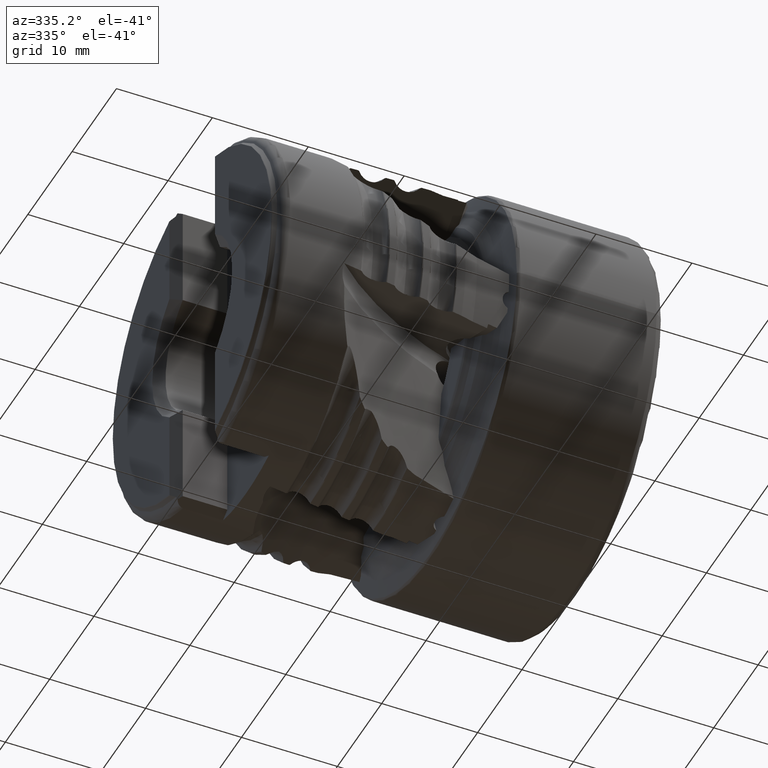
[diagram: clean part render]
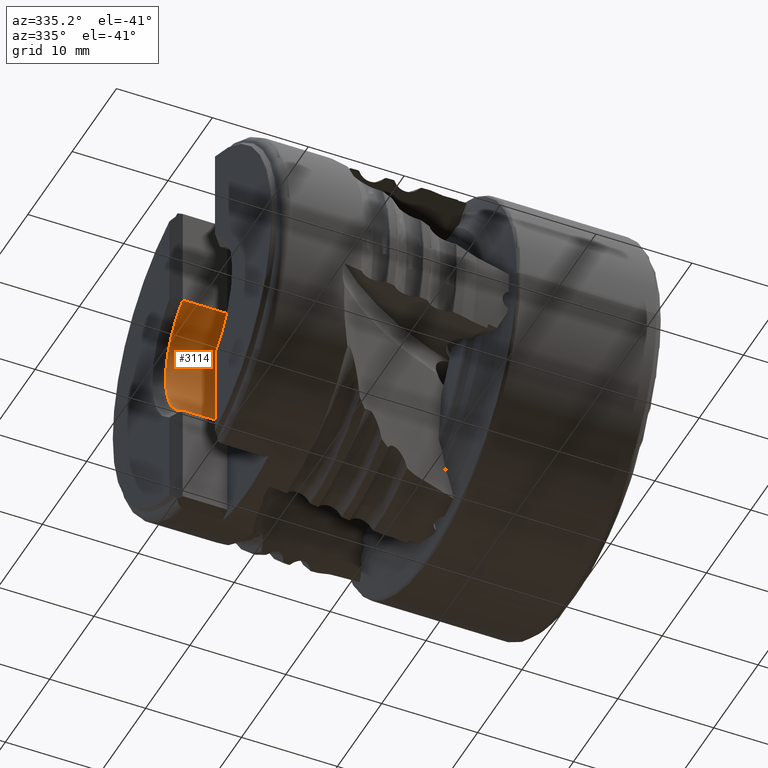
[diagram: same view with one face highlighted and labeled with its STEP entity id]
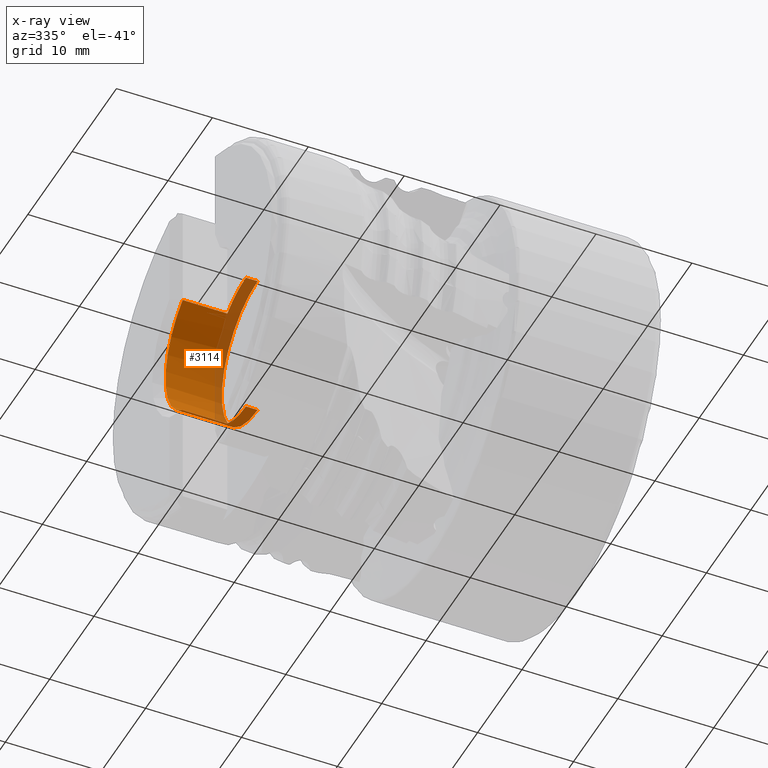
[diagram: x-ray of the same camera — body ghosted, the highlighted face saturated]
A machine part, auxiliary view. The second image highlights one B-rep face of the part: STEP entity #3114.
The next image is the same camera in x-ray: the body ghosted, the highlighted face saturated — about 26% of this face is hidden behind the body in this view.
In plain terms, the highlighted cylindrical surface (partial cylindrical patch) has radius 8.075 mm, axis along (1, -0, -0).
Its self-contained STEP definition (entity closure, byte-faithful):
#302 = DIRECTION ( 'NONE',  ( 0.0000000000000000000, 3.552713678800500929E-15, -1.000000000000000000 ) ) ;
#404 = EDGE_CURVE ( 'NONE', #10085, #5048, #13959, .T. ) ;
#441 = EDGE_LOOP ( 'NONE', ( #4453, #3332, #12303, #14901, #7758, #13588, #6502, #4756 ) ) ;
#627 = VERTEX_POINT ( 'NONE', #8793 ) ;
#1146 = AXIS2_PLACEMENT_3D ( 'NONE', #15166, #12739, #6769 ) ;
#1434 = DIRECTION ( 'NONE',  ( 1.000000000000000000, -0.0000000000000000000, -0.0000000000000000000 ) ) ;
#1790 = LINE ( 'NONE', #14559, #14127 ) ;
#2096 = EDGE_CURVE ( 'NONE', #627, #9205, #1790, .T. ) ;
#2115 = CARTESIAN_POINT ( 'NONE',  ( -33.39999999999999147, 4.200000000000000178, 6.896783670668524380 ) ) ;
#2384 = DIRECTION ( 'NONE',  ( 1.000000000000000000, -0.0000000000000000000, -0.0000000000000000000 ) ) ;
#2411 = VERTEX_POINT ( 'NONE', #6947 ) ;
#2471 = DIRECTION ( 'NONE',  ( -1.000000000000000000, 0.0000000000000000000, 0.0000000000000000000 ) ) ;
#2524 = VECTOR ( 'NONE', #1434, 1000.000000000000000 ) ;
#2635 = CARTESIAN_POINT ( 'NONE',  ( -38.04999999999999005, 4.200000000000000178, 6.896783670668518162 ) ) ;
#2968 = DIRECTION ( 'NONE',  ( 0.0000000000000000000, 0.0000000000000000000, -1.000000000000000000 ) ) ;
#3114 = ADVANCED_FACE ( 'NONE', ( #11271 ), #8080, .F. ) ;
#3332 = ORIENTED_EDGE ( 'NONE', *, *, #8891, .T. ) ;
#3355 = VERTEX_POINT ( 'NONE', #9265 ) ;
#3654 = LINE ( 'NONE', #14715, #2524 ) ;
#4077 = EDGE_CURVE ( 'NONE', #10426, #9403, #14038, .T. ) ;
#4259 = CARTESIAN_POINT ( 'NONE',  ( -32.17999999999999261, 0.0000000000000000000, 0.0000000000000000000 ) ) ;
#4453 = ORIENTED_EDGE ( 'NONE', *, *, #8141, .F. ) ;
#4756 = ORIENTED_EDGE ( 'NONE', *, *, #8779, .T. ) ;
#5048 = VERTEX_POINT ( 'NONE', #2635 ) ;
#5177 = DIRECTION ( 'NONE',  ( 1.000000000000000000, -0.0000000000000000000, -0.0000000000000000000 ) ) ;
#5302 = CARTESIAN_POINT ( 'NONE',  ( -33.39999999999999147, 4.200000000000000178, -6.896783670668524380 ) ) ;
#6054 = CARTESIAN_POINT ( 'NONE',  ( -33.39999999999999147, 0.0000000000000000000, 0.0000000000000000000 ) ) ;
#6409 = CARTESIAN_POINT ( 'NONE',  ( 0.0000000000000000000, 0.0000000000000000000, 0.0000000000000000000 ) ) ;
#6462 = DIRECTION ( 'NONE',  ( 1.000000000000000000, -0.0000000000000000000, -0.0000000000000000000 ) ) ;
#6502 = ORIENTED_EDGE ( 'NONE', *, *, #2096, .T. ) ;
#6596 = EDGE_CURVE ( 'NONE', #9403, #627, #9093, .T. ) ;
#6672 = DIRECTION ( 'NONE',  ( 1.000000000000000000, -0.0000000000000000000, -0.0000000000000000000 ) ) ;
#6750 = AXIS2_PLACEMENT_3D ( 'NONE', #4259, #6672, #15059 ) ;
#6769 = DIRECTION ( 'NONE',  ( 0.0000000000000000000, 0.0000000000000000000, -1.000000000000000000 ) ) ;
#6917 = DIRECTION ( 'NONE',  ( 0.0000000000000000000, 0.0000000000000000000, -1.000000000000000000 ) ) ;
#6947 = CARTESIAN_POINT ( 'NONE',  ( -32.17999999999999261, 0.0000000000000000000, 8.074999999999995737 ) ) ;
#7251 = DIRECTION ( 'NONE',  ( -1.000000000000000000, -0.0000000000000000000, 0.0000000000000000000 ) ) ;
#7333 = CIRCLE ( 'NONE', #1146, 8.074999999999995737 ) ;
#7725 = CIRCLE ( 'NONE', #6750, 8.074999999999995737 ) ;
#7758 = ORIENTED_EDGE ( 'NONE', *, *, #4077, .T. ) ;
#8080 = CYLINDRICAL_SURFACE ( 'NONE', #12853, 8.074999999999995737 ) ;
#8141 = EDGE_CURVE ( 'NONE', #3355, #2411, #3654, .T. ) ;
#8555 = CARTESIAN_POINT ( 'NONE',  ( -32.17999999999999261, 9.889022903114869919E-16, -8.074999999999995737 ) ) ;
#8779 = EDGE_CURVE ( 'NONE', #9205, #2411, #7725, .T. ) ;
#8793 = CARTESIAN_POINT ( 'NONE',  ( -33.39999999999999147, 0.0000000000000000000, -8.074999999999995737 ) ) ;
#8891 = EDGE_CURVE ( 'NONE', #3355, #10085, #7333, .T. ) ;
#8995 = CIRCLE ( 'NONE', #9412, 8.074999999999995737 ) ;
#9093 = CIRCLE ( 'NONE', #14563, 8.074999999999995737 ) ;
#9205 = VERTEX_POINT ( 'NONE', #8555 ) ;
#9265 = CARTESIAN_POINT ( 'NONE',  ( -33.39999999999999147, 9.889022903114871891E-16, 8.074999999999995737 ) ) ;
#9403 = VERTEX_POINT ( 'NONE', #5302 ) ;
#9412 = AXIS2_PLACEMENT_3D ( 'NONE', #12981, #12827, #6917 ) ;
#9654 = VECTOR ( 'NONE', #2471, 1000.000000000000000 ) ;
#9930 = VECTOR ( 'NONE', #5177, 1000.000000000000000 ) ;
#10085 = VERTEX_POINT ( 'NONE', #2115 ) ;
#10426 = VERTEX_POINT ( 'NONE', #11277 ) ;
#11271 = FACE_OUTER_BOUND ( 'NONE', #441, .T. ) ;
#11277 = CARTESIAN_POINT ( 'NONE',  ( -38.04999999999999005, 4.200000000000000178, -6.896783670668518162 ) ) ;
#11486 = CARTESIAN_POINT ( 'NONE',  ( 7.834235052798470038E-16, 4.199999999999993960, -6.896783670668522603 ) ) ;
#12303 = ORIENTED_EDGE ( 'NONE', *, *, #404, .T. ) ;
#12532 = EDGE_CURVE ( 'NONE', #10426, #5048, #8995, .T. ) ;
#12739 = DIRECTION ( 'NONE',  ( -1.000000000000000000, -0.0000000000000000000, 0.0000000000000000000 ) ) ;
#12827 = DIRECTION ( 'NONE',  ( 1.000000000000000000, -0.0000000000000000000, -0.0000000000000000000 ) ) ;
#12853 = AXIS2_PLACEMENT_3D ( 'NONE', #6409, #6462, #2968 ) ;
#12981 = CARTESIAN_POINT ( 'NONE',  ( -38.04999999999999005, 0.0000000000000000000, 0.0000000000000000000 ) ) ;
#13588 = ORIENTED_EDGE ( 'NONE', *, *, #6596, .T. ) ;
#13959 = LINE ( 'NONE', #14498, #9654 ) ;
#14038 = LINE ( 'NONE', #11486, #9930 ) ;
#14127 = VECTOR ( 'NONE', #2384, 1000.000000000000000 ) ;
#14498 = CARTESIAN_POINT ( 'NONE',  ( 7.834235052798470038E-16, 4.199999999999993960, 6.896783670668522603 ) ) ;
#14559 = CARTESIAN_POINT ( 'NONE',  ( 0.0000000000000000000, 0.0000000000000000000, -8.074999999999995737 ) ) ;
#14563 = AXIS2_PLACEMENT_3D ( 'NONE', #6054, #7251, #302 ) ;
#14715 = CARTESIAN_POINT ( 'NONE',  ( 0.0000000000000000000, 9.889022903114871891E-16, 8.074999999999995737 ) ) ;
#14901 = ORIENTED_EDGE ( 'NONE', *, *, #12532, .F. ) ;
#15059 = DIRECTION ( 'NONE',  ( 0.0000000000000000000, 0.0000000000000000000, -1.000000000000000000 ) ) ;
#15166 = CARTESIAN_POINT ( 'NONE',  ( -33.39999999999999147, 0.0000000000000000000, 0.0000000000000000000 ) ) ;